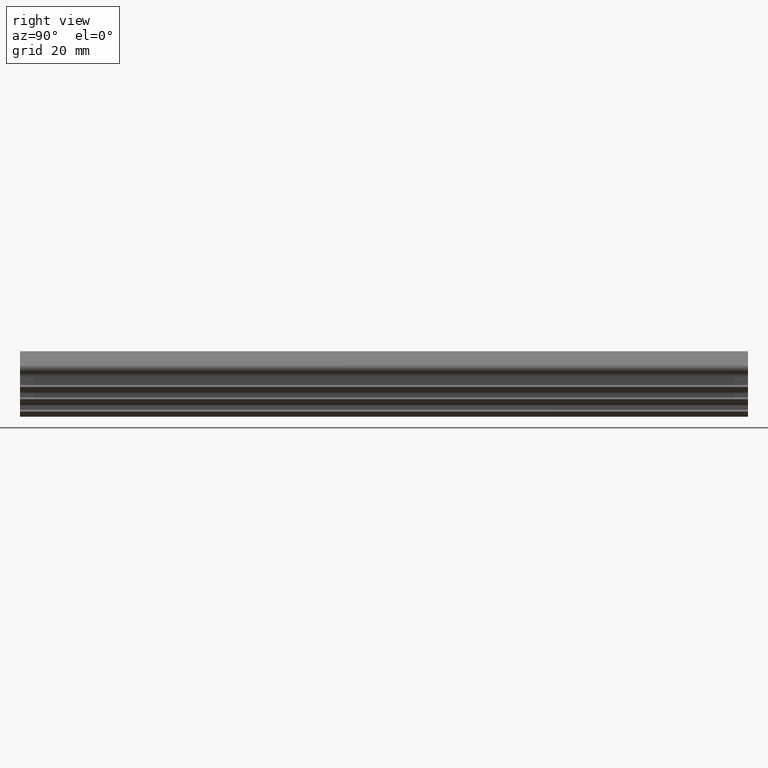
[diagram: clean part render]
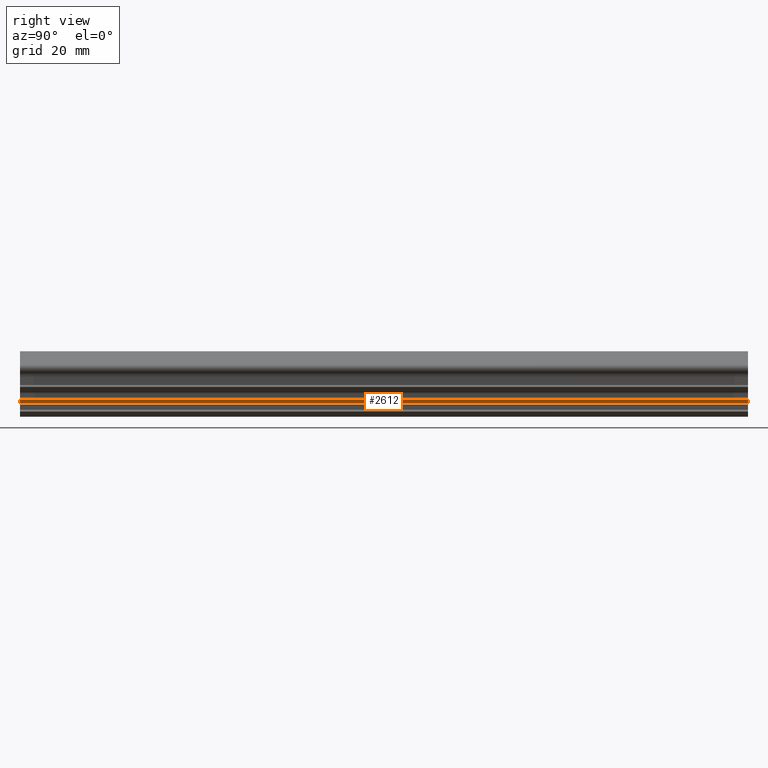
[diagram: same view with one face highlighted and labeled with its STEP entity id]
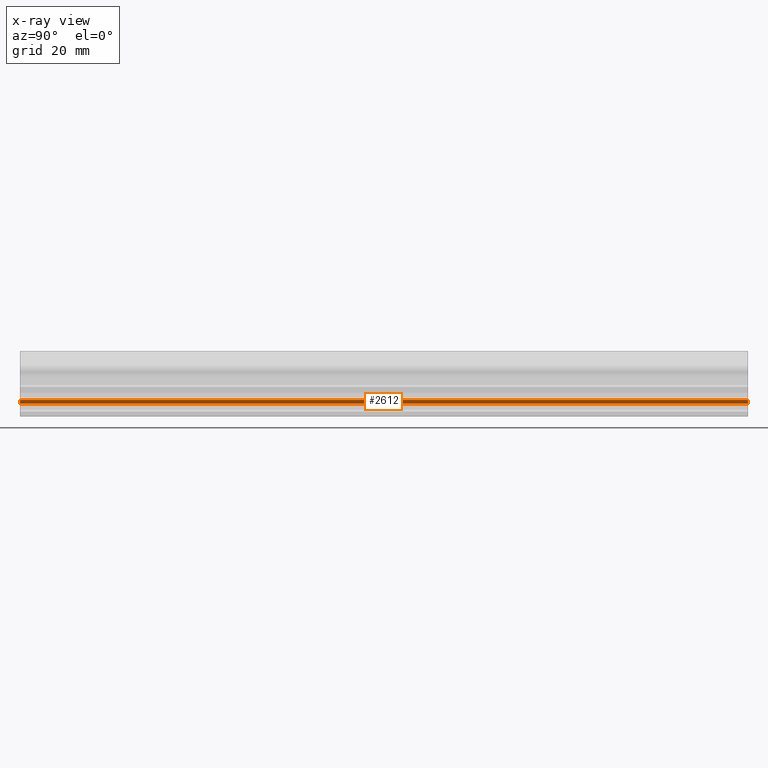
[diagram: x-ray of the same camera — body ghosted, the highlighted face saturated]
A machine part, right view. The second image highlights one B-rep face of the part: STEP entity #2612.
The next image is the same camera in x-ray: the body ghosted, the highlighted face saturated — about 0% of this face is hidden behind the body in this view.
In plain terms, the highlighted face is a freeform B-spline surface patch.
Its self-contained STEP definition (entity closure, byte-faithful):
#497=CARTESIAN_POINT('',(2.942893358593430,0.0,3.618629321977145));
#498=VERTEX_POINT('',#497);
#512=CARTESIAN_POINT('',(3.912132220172265,0.0,4.587868183556051));
#513=VERTEX_POINT('',#512);
#514=CARTESIAN_POINT('',(3.912132220172265,0.0,4.587868183556051));
#515=CARTESIAN_POINT('',(2.942893358593430,0.0,3.618629321977145));
#516=QUASI_UNIFORM_CURVE('',1,(#514,#515),.UNSPECIFIED.,.F.,.U.);
#517=EDGE_CURVE('',#513,#498,#516,.T.);
#933=CARTESIAN_POINT('',(3.912132220172265,200.0,4.587868183556051));
#934=VERTEX_POINT('',#933);
#950=CARTESIAN_POINT('',(2.942893358593430,200.0,3.618629321977145));
#951=VERTEX_POINT('',#950);
#952=CARTESIAN_POINT('',(3.912132220172265,200.0,4.587868183556051));
#953=CARTESIAN_POINT('',(2.942893358593430,200.0,3.618629321977145));
#954=QUASI_UNIFORM_CURVE('',1,(#952,#953),.UNSPECIFIED.,.F.,.U.);
#955=EDGE_CURVE('',#934,#951,#954,.T.);
#2589=CARTESIAN_POINT('',(2.942893358593430,200.0,3.618629321977145));
#2590=CARTESIAN_POINT('',(2.942893358593430,0.0,3.618629321977145));
#2591=QUASI_UNIFORM_CURVE('',1,(#2589,#2590),.UNSPECIFIED.,.F.,.U.);
#2592=EDGE_CURVE('',#951,#498,#2591,.T.);
#2597=CARTESIAN_POINT('',(2.894479770153885,-9.989999612361194,3.570215733537603));
#2598=CARTESIAN_POINT('',(3.960545730620777,-9.989999612361194,4.636281694004553));
#2599=CARTESIAN_POINT('',(2.894479770153885,209.990004976779200,3.570215733537603));
#2600=CARTESIAN_POINT('',(3.960545730620777,209.990004976779200,4.636281694004553));
#2601=B_SPLINE_SURFACE_WITH_KNOTS('',1,1,((#2597,#2599),(#2598,#2600)),.UNSPECIFIED.,.F.,.F.,.U.,(2,2),(2,2),(0.041708241075650,0.958291691869125),(0.0,219.980004589140410),.UNSPECIFIED.);
#2602=ORIENTED_EDGE('',*,*,#517,.T.);
#2603=ORIENTED_EDGE('',*,*,#2592,.F.);
#2604=ORIENTED_EDGE('',*,*,#955,.F.);
#2605=CARTESIAN_POINT('',(3.912132220172265,200.0,4.587868183556051));
#2606=CARTESIAN_POINT('',(3.912132220172265,0.0,4.587868183556051));
#2607=QUASI_UNIFORM_CURVE('',1,(#2605,#2606),.UNSPECIFIED.,.F.,.U.);
#2608=EDGE_CURVE('',#934,#513,#2607,.T.);
#2609=ORIENTED_EDGE('',*,*,#2608,.T.);
#2610=EDGE_LOOP('',(#2602,#2603,#2604,#2609));
#2611=FACE_OUTER_BOUND('',#2610,.T.);
#2612=ADVANCED_FACE('',(#2611),#2601,.F.);